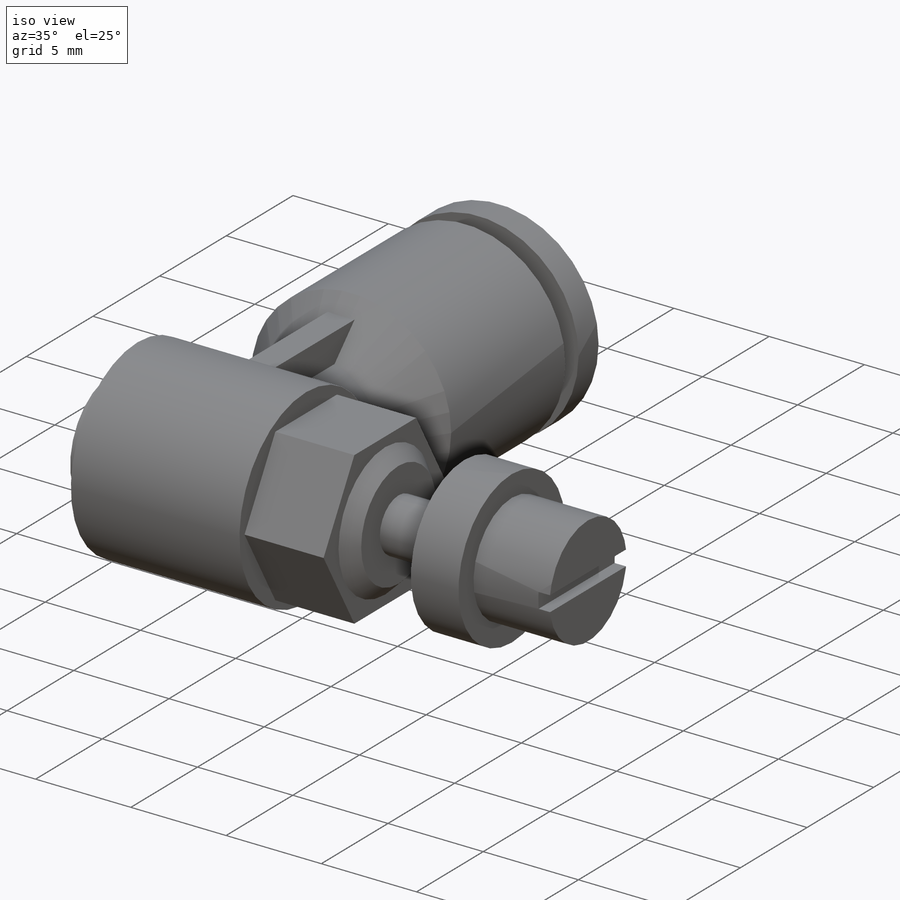
[diagram: iso view]
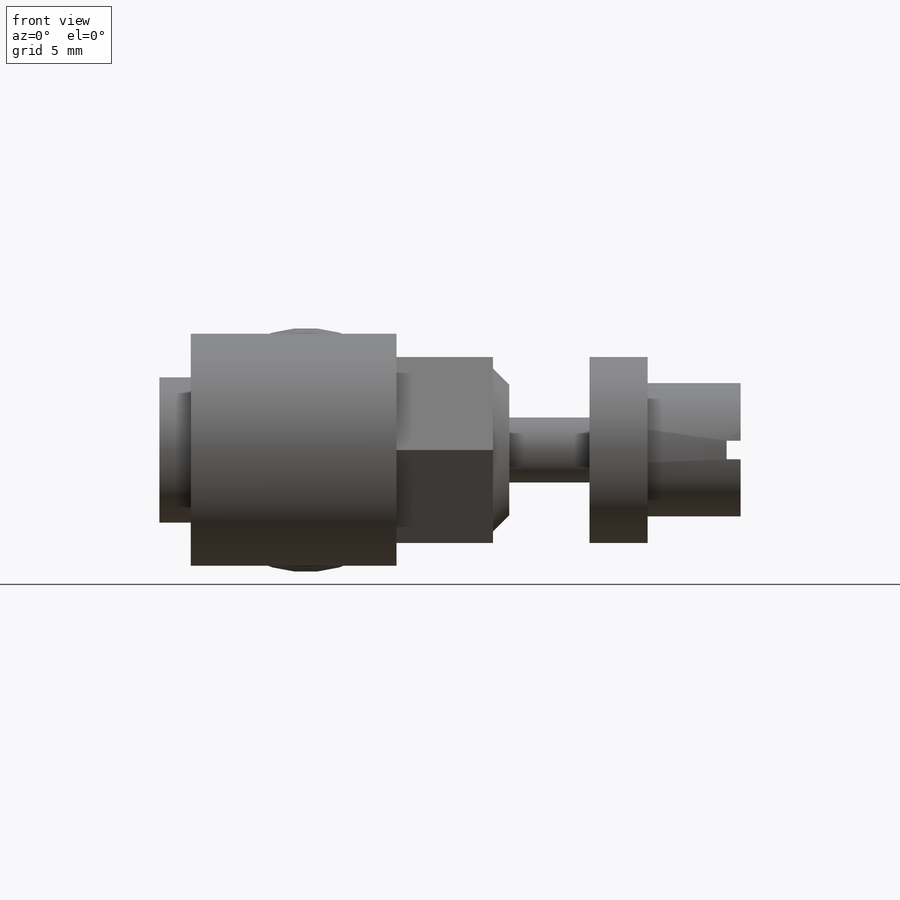
[diagram: front view]
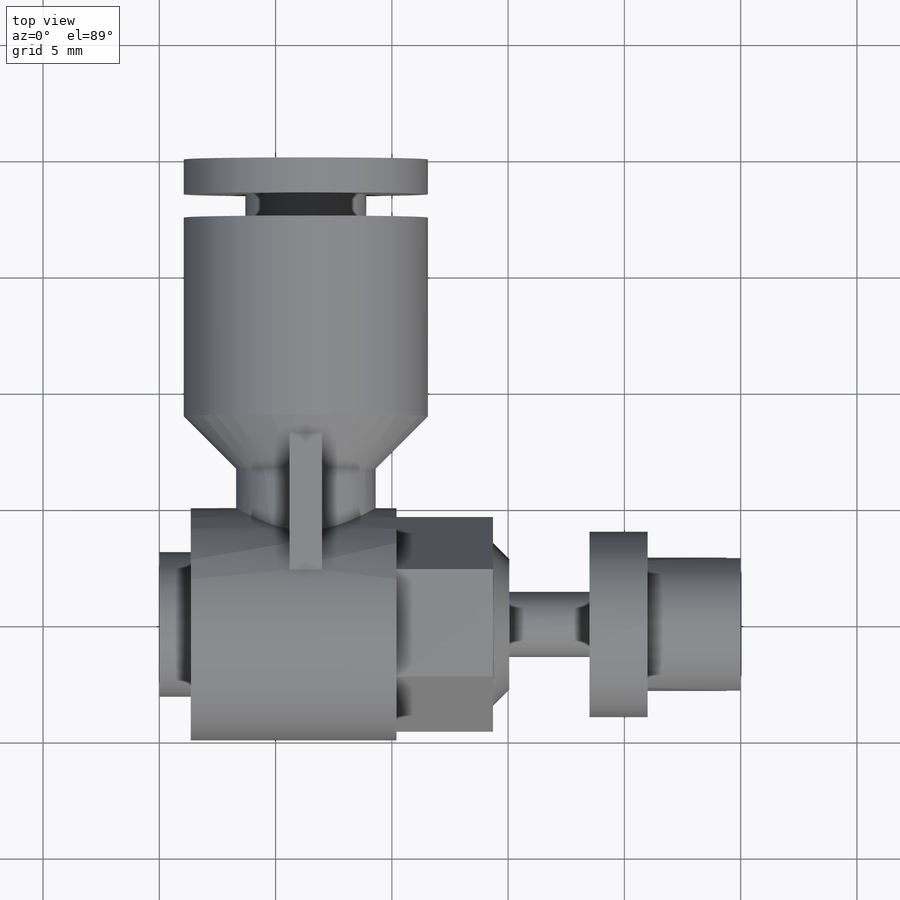
[diagram: top view]
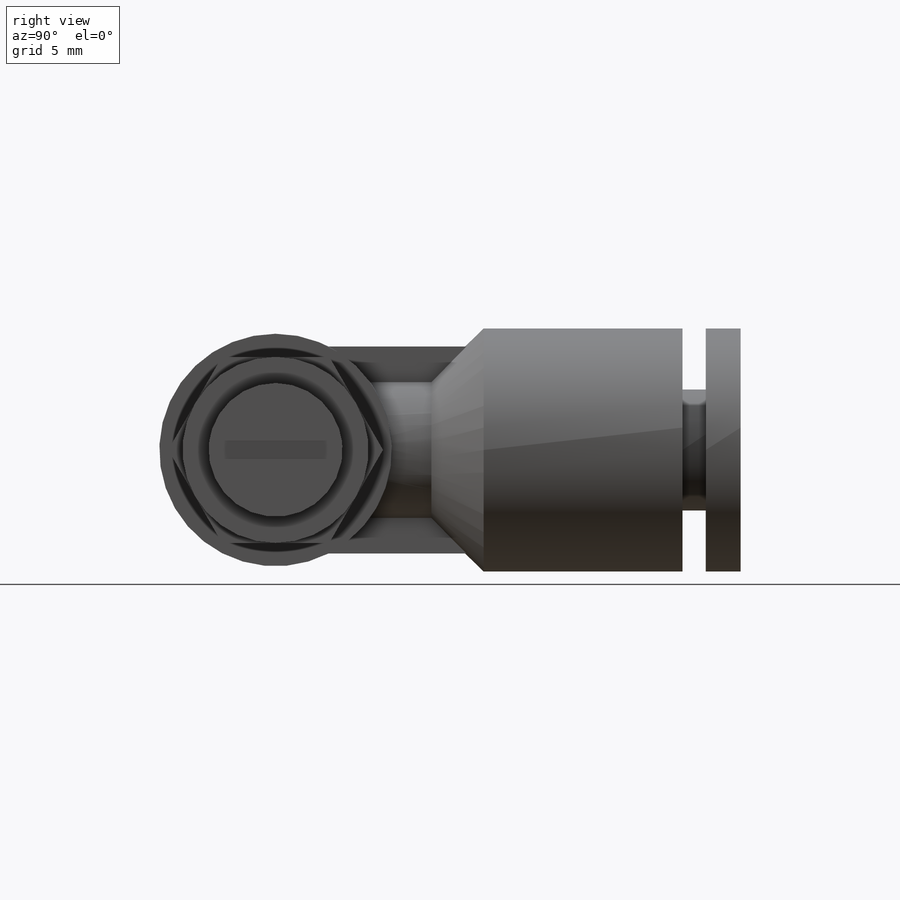
[diagram: right view]
SOLIDWORKS PART (.sldprt)
format: sldprt  version: not decoded by parser v0  size: 279,040 bytes
history: native  units: mm
features: sketch x5, revolve x2, cut_extrude x2, material x1, extrude x1 (+16 scaffold rows collapsed)
feature tree (27):
  scaffold x16  (default folders/planes/origin — collapsed)
  material  "Material <not specified>"
  sketch  "Sketch1"  dims[c1.D1=3.125mm c1.D2=5.0mm c1.D3=1.35mm c1.D4=13.0mm c1.D5=25.0mm c1.D6=0.7mm c1.D7=~0.941526mm c2.D7=45.0deg c2.D8=3.5mm c2.D9=1.4mm c2.D10=4.0mm c2.D11=2.875mm c2.D12=2.5mm c2.D13=4.0mm]
  revolve  "Revolve1"  Angle=360deg
  sketch  "Sketch2"  dims[D1=8.0mm]
  cut_extrude  "Cut-Extrude1"  Depth=4.15mm
  sketch  "Sketch3"  dims[D1=0.8mm]
  cut_extrude  "Cut-Extrude2"  Depth=0.6mm
  sketch  "Sketch4"  dims[c1.D1=4.3mm c1.D2=6.3mm c1.D3=6.0mm c1.D4=~1.73476mm c2.D4=45.0deg c2.D5=10.5mm c2.D6=25.0mm c2.D7=1.5mm c2.D8=5.2mm c2.D9=1.0mm c2.D10=13.3mm]
  revolve  "Revolve2"  Angle=360deg
  sketch  "Sketch5"  dims[D1=8.9mm D2=1.4mm]
  extrude  "Boss-Extrude1"  Depth=10mm
decode coverage: 10 of 10 modeling features carry decoded parameters
note: ~ marks probable driven/reference dimensions
note: suppression state not decoded; provenance and decode notes live in map.json
